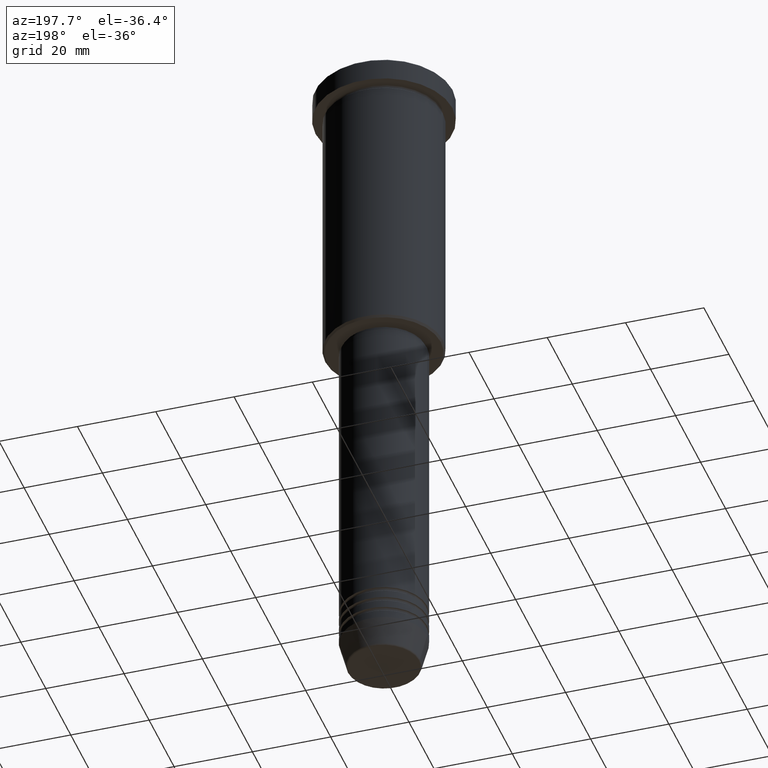
[diagram: clean part render]
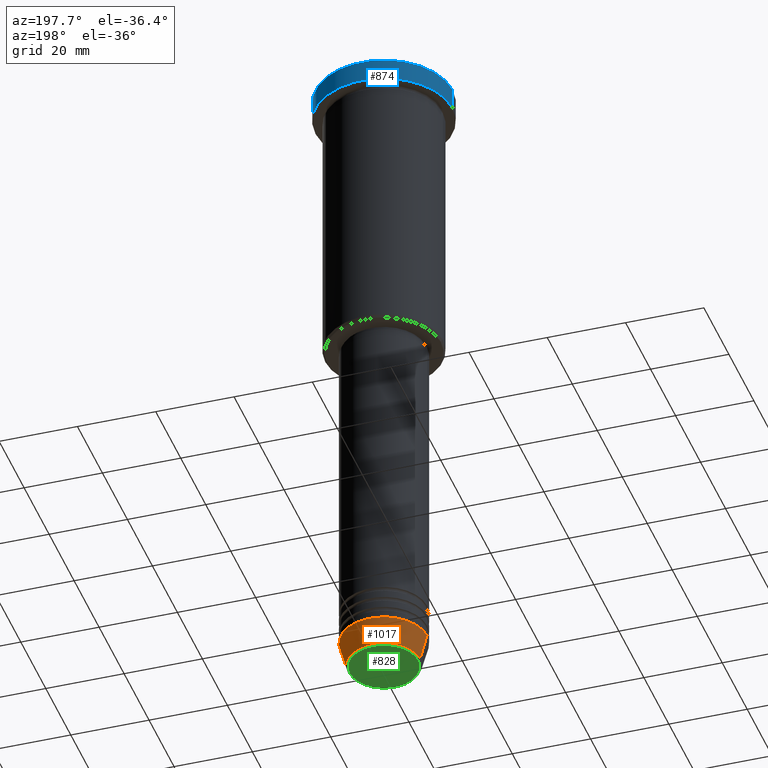
[diagram: same view with three faces highlighted in distinct colors, each labeled with its STEP entity id]
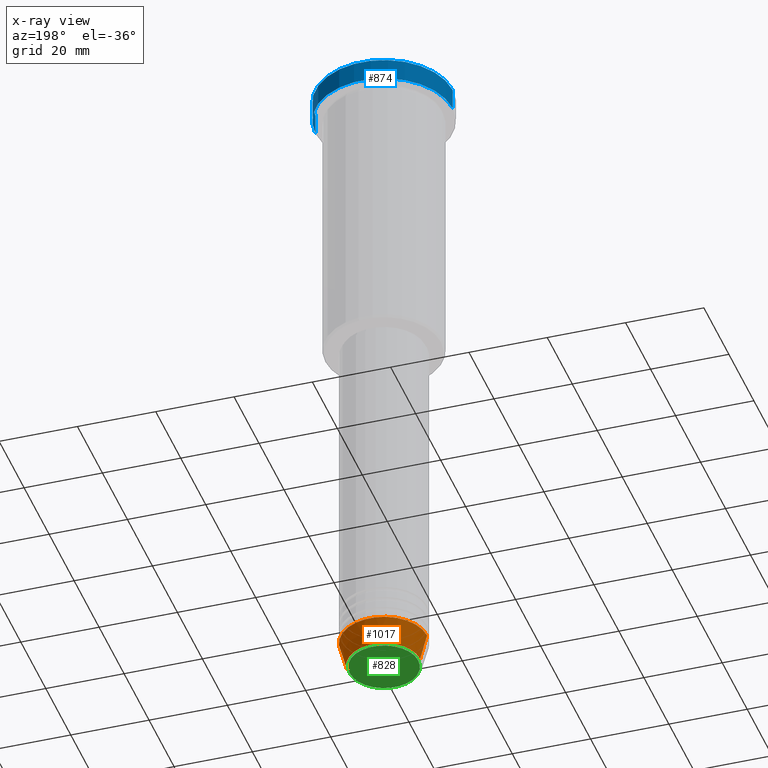
[diagram: x-ray of the same camera — body ghosted, the three highlighted faces saturated]
A machine part, auxiliary view with three faces highlighted in distinct colors.
The next image is the same camera in x-ray (body ghosted, the three faces saturated) — at least one of them is partly hidden behind the body in this view.
Their STEP definitions:

[orange] entity #1017 — the highlighted conical surface has half-angle 15 deg.
#62 = AXIS2_PLACEMENT_3D ( 'NONE', #147, #1050, #515 ) ;
#81 = AXIS2_PLACEMENT_3D ( 'NONE', #851, #662, #553 ) ;
#93 = CIRCLE ( 'NONE', #764, 9.223655072137194821 ) ;
#107 = EDGE_CURVE ( 'NONE', #1179, #415, #93, .T. ) ;
#132 = CARTESIAN_POINT ( 'NONE',  ( 11.00000000000000000, 0.000000000000000000, -164.0000000000000000 ) ) ;
#147 = CARTESIAN_POINT ( 'NONE',  ( 0.000000000000000000, 0.000000000000000000, -164.0000000000000000 ) ) ;
#203 = CARTESIAN_POINT ( 'NONE',  ( 9.223655072137194821, 0.000000000000000000, -170.6294095225512422 ) ) ;
#228 = CARTESIAN_POINT ( 'NONE',  ( 11.00000000000000000, 0.000000000000000000, -164.0000000000000000 ) ) ;
#295 = EDGE_CURVE ( 'NONE', #1179, #855, #678, .T. ) ;
#395 = ORIENTED_EDGE ( 'NONE', *, *, #295, .F. ) ;
#415 = VERTEX_POINT ( 'NONE', #875 ) ;
#421 = FACE_OUTER_BOUND ( 'NONE', #944, .T. ) ;
#487 = EDGE_CURVE ( 'NONE', #415, #848, #527, .T. ) ;
#497 = DIRECTION ( 'NONE',  ( 0.2588190451025213501, 0.000000000000000000, 0.9659258262890680902 ) ) ;
#509 = CARTESIAN_POINT ( 'NONE',  ( 0.000000000000000000, 0.000000000000000000, -170.6294095225512422 ) ) ;
#511 = CARTESIAN_POINT ( 'NONE',  ( -11.00000000000000000, 1.347111479062088405E-15, -164.0000000000000000 ) ) ;
#515 = DIRECTION ( 'NONE',  ( 1.000000000000000000, 0.000000000000000000, 0.000000000000000000 ) ) ;
#527 = LINE ( 'NONE', #1176, #604 ) ;
#553 = DIRECTION ( 'NONE',  ( 1.000000000000000000, 0.000000000000000000, 0.000000000000000000 ) ) ;
#604 = VECTOR ( 'NONE', #1181, 1000.000000000000000 ) ;
#662 = DIRECTION ( 'NONE',  ( -0.000000000000000000, -0.000000000000000000, 1.000000000000000000 ) ) ;
#678 = LINE ( 'NONE', #132, #918 ) ;
#699 = DIRECTION ( 'NONE',  ( -0.000000000000000000, -0.000000000000000000, 1.000000000000000000 ) ) ;
#747 = ORIENTED_EDGE ( 'NONE', *, *, #1164, .F. ) ;
#764 = AXIS2_PLACEMENT_3D ( 'NONE', #509, #699, #860 ) ;
#814 = ORIENTED_EDGE ( 'NONE', *, *, #107, .T. ) ;
#848 = VERTEX_POINT ( 'NONE', #511 ) ;
#851 = CARTESIAN_POINT ( 'NONE',  ( 0.000000000000000000, 0.000000000000000000, -164.0000000000000000 ) ) ;
#855 = VERTEX_POINT ( 'NONE', #228 ) ;
#860 = DIRECTION ( 'NONE',  ( 1.000000000000000000, 0.000000000000000000, 0.000000000000000000 ) ) ;
#875 = CARTESIAN_POINT ( 'NONE',  ( -9.223655072137194821, 1.238341722557647596E-15, -170.6294095225512422 ) ) ;
#918 = VECTOR ( 'NONE', #497, 1000.000000000000000 ) ;
#944 = EDGE_LOOP ( 'NONE', ( #814, #992, #747, #395 ) ) ;
#992 = ORIENTED_EDGE ( 'NONE', *, *, #487, .T. ) ;
#1017 = ADVANCED_FACE ( 'NONE', ( #421 ), #1174, .T. ) ;
#1050 = DIRECTION ( 'NONE',  ( -0.000000000000000000, -0.000000000000000000, 1.000000000000000000 ) ) ;
#1110 = CIRCLE ( 'NONE', #81, 11.00000000000000000 ) ;
#1164 = EDGE_CURVE ( 'NONE', #855, #848, #1110, .T. ) ;
#1174 = CONICAL_SURFACE ( 'NONE', #62, 11.00000000000000000, 0.2617993877991500740 ) ;
#1176 = CARTESIAN_POINT ( 'NONE',  ( -11.00000000000000000, 1.347111479062088405E-15, -164.0000000000000000 ) ) ;
#1179 = VERTEX_POINT ( 'NONE', #203 ) ;
#1181 = DIRECTION ( 'NONE',  ( -0.2588190451025213501, 3.169619151431772337E-17, 0.9659258262890680902 ) ) ;

[blue] entity #874 — the highlighted cylindrical surface (partial cylindrical patch) has radius 17.5 mm, axis along (-0, -0, 1).
#73 = DIRECTION ( 'NONE',  ( 0.000000000000000000, 0.000000000000000000, -1.000000000000000000 ) ) ;
#74 = CARTESIAN_POINT ( 'NONE',  ( -17.50000000000000000, 2.143131898507868248E-15, -0.4999999999999727995 ) ) ;
#97 = AXIS2_PLACEMENT_3D ( 'NONE', #1153, #73, #330 ) ;
#157 = DIRECTION ( 'NONE',  ( -0.000000000000000000, -0.000000000000000000, 1.000000000000000000 ) ) ;
#172 = VERTEX_POINT ( 'NONE', #74 ) ;
#248 = CARTESIAN_POINT ( 'NONE',  ( 0.000000000000000000, 0.000000000000000000, -5.999999999999995559 ) ) ;
#258 = DIRECTION ( 'NONE',  ( -0.000000000000000000, -0.000000000000000000, 1.000000000000000000 ) ) ;
#330 = DIRECTION ( 'NONE',  ( 1.000000000000000000, 0.000000000000000000, 0.000000000000000000 ) ) ;
#374 = VECTOR ( 'NONE', #1130, 1000.000000000000000 ) ;
#436 = CARTESIAN_POINT ( 'NONE',  ( -17.50000000000000000, 2.143131898507868248E-15, -5.999999999999995559 ) ) ;
#459 = VERTEX_POINT ( 'NONE', #626 ) ;
#465 = EDGE_LOOP ( 'NONE', ( #696, #915, #1041, #547 ) ) ;
#482 = DIRECTION ( 'NONE',  ( -0.000000000000000000, -0.000000000000000000, 1.000000000000000000 ) ) ;
#493 = EDGE_CURVE ( 'NONE', #534, #1033, #548, .T. ) ;
#518 = CARTESIAN_POINT ( 'NONE',  ( 17.50000000000000000, 0.000000000000000000, -5.999999999999995559 ) ) ;
#530 = VECTOR ( 'NONE', #258, 1000.000000000000000 ) ;
#534 = VERTEX_POINT ( 'NONE', #518 ) ;
#547 = ORIENTED_EDGE ( 'NONE', *, *, #777, .F. ) ;
#548 = CIRCLE ( 'NONE', #693, 17.50000000000000000 ) ;
#574 = CARTESIAN_POINT ( 'NONE',  ( 0.000000000000000000, 0.000000000000000000, 0.000000000000000000 ) ) ;
#626 = CARTESIAN_POINT ( 'NONE',  ( 17.50000000000000000, 0.000000000000000000, -0.4999999999999727995 ) ) ;
#674 = CIRCLE ( 'NONE', #97, 17.50000000000000000 ) ;
#688 = CARTESIAN_POINT ( 'NONE',  ( 17.50000000000000000, 0.000000000000000000, 0.000000000000000000 ) ) ;
#693 = AXIS2_PLACEMENT_3D ( 'NONE', #248, #157, #1155 ) ;
#696 = ORIENTED_EDGE ( 'NONE', *, *, #493, .T. ) ;
#757 = DIRECTION ( 'NONE',  ( 1.000000000000000000, 0.000000000000000000, 0.000000000000000000 ) ) ;
#777 = EDGE_CURVE ( 'NONE', #534, #459, #1093, .T. ) ;
#827 = AXIS2_PLACEMENT_3D ( 'NONE', #574, #482, #757 ) ;
#874 = ADVANCED_FACE ( 'NONE', ( #1113 ), #1018, .T. ) ;
#896 = EDGE_CURVE ( 'NONE', #1033, #172, #1122, .T. ) ;
#915 = ORIENTED_EDGE ( 'NONE', *, *, #896, .T. ) ;
#928 = EDGE_CURVE ( 'NONE', #172, #459, #674, .T. ) ;
#980 = CARTESIAN_POINT ( 'NONE',  ( -17.50000000000000000, 2.143131898507868248E-15, 0.000000000000000000 ) ) ;
#1018 = CYLINDRICAL_SURFACE ( 'NONE', #827, 17.50000000000000000 ) ;
#1033 = VERTEX_POINT ( 'NONE', #436 ) ;
#1041 = ORIENTED_EDGE ( 'NONE', *, *, #928, .T. ) ;
#1093 = LINE ( 'NONE', #688, #374 ) ;
#1113 = FACE_OUTER_BOUND ( 'NONE', #465, .T. ) ;
#1122 = LINE ( 'NONE', #980, #530 ) ;
#1130 = DIRECTION ( 'NONE',  ( -0.000000000000000000, -0.000000000000000000, 1.000000000000000000 ) ) ;
#1153 = CARTESIAN_POINT ( 'NONE',  ( 0.000000000000000000, 0.000000000000000000, -0.4999999999999727995 ) ) ;
#1155 = DIRECTION ( 'NONE',  ( 1.000000000000000000, 0.000000000000000000, 0.000000000000000000 ) ) ;

[green] entity #828 — the highlighted planar face has unit normal (0, -0, 1).
#11 = CARTESIAN_POINT ( 'NONE',  ( -8.740692158992663607, 1.099999016768740442E-15, -170.9999999999999716 ) ) ;
#95 = CIRCLE ( 'NONE', #657, 8.740692158992663607 ) ;
#110 = DIRECTION ( 'NONE',  ( 1.000000000000000000, 0.000000000000000000, 0.000000000000000000 ) ) ;
#124 = CARTESIAN_POINT ( 'NONE',  ( 8.740692158992663607, 0.000000000000000000, -170.9999999999999716 ) ) ;
#146 = VERTEX_POINT ( 'NONE', #11 ) ;
#206 = CARTESIAN_POINT ( 'NONE',  ( 0.000000000000000000, 0.000000000000000000, -170.9999999999999716 ) ) ;
#296 = PLANE ( 'NONE',  #1107 ) ;
#372 = DIRECTION ( 'NONE',  ( 1.000000000000000000, 0.000000000000000000, 0.000000000000000000 ) ) ;
#417 = EDGE_LOOP ( 'NONE', ( #720, #739 ) ) ;
#441 = VERTEX_POINT ( 'NONE', #124 ) ;
#528 = CIRCLE ( 'NONE', #1009, 8.740692158992663607 ) ;
#545 = CARTESIAN_POINT ( 'NONE',  ( 0.000000000000000000, 0.000000000000000000, -170.9999999999999716 ) ) ;
#555 = EDGE_CURVE ( 'NONE', #441, #146, #528, .T. ) ;
#657 = AXIS2_PLACEMENT_3D ( 'NONE', #909, #839, #372 ) ;
#720 = ORIENTED_EDGE ( 'NONE', *, *, #555, .T. ) ;
#723 = DIRECTION ( 'NONE',  ( 1.000000000000000000, 0.000000000000000000, 0.000000000000000000 ) ) ;
#739 = ORIENTED_EDGE ( 'NONE', *, *, #755, .T. ) ;
#755 = EDGE_CURVE ( 'NONE', #146, #441, #95, .T. ) ;
#768 = FACE_OUTER_BOUND ( 'NONE', #417, .T. ) ;
#774 = DIRECTION ( 'NONE',  ( 0.000000000000000000, -0.000000000000000000, 1.000000000000000000 ) ) ;
#807 = DIRECTION ( 'NONE',  ( 0.000000000000000000, 0.000000000000000000, -1.000000000000000000 ) ) ;
#828 = ADVANCED_FACE ( 'NONE', ( #768 ), #296, .F. ) ;
#839 = DIRECTION ( 'NONE',  ( 0.000000000000000000, 0.000000000000000000, -1.000000000000000000 ) ) ;
#909 = CARTESIAN_POINT ( 'NONE',  ( 0.000000000000000000, 0.000000000000000000, -170.9999999999999716 ) ) ;
#1009 = AXIS2_PLACEMENT_3D ( 'NONE', #545, #807, #723 ) ;
#1107 = AXIS2_PLACEMENT_3D ( 'NONE', #206, #774, #110 ) ;